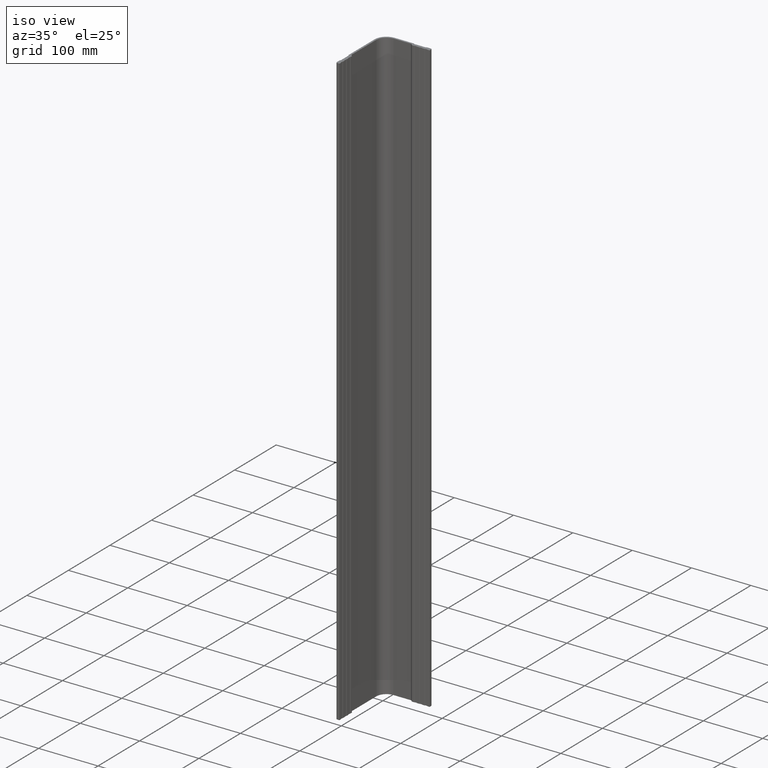
[diagram: clean part render]
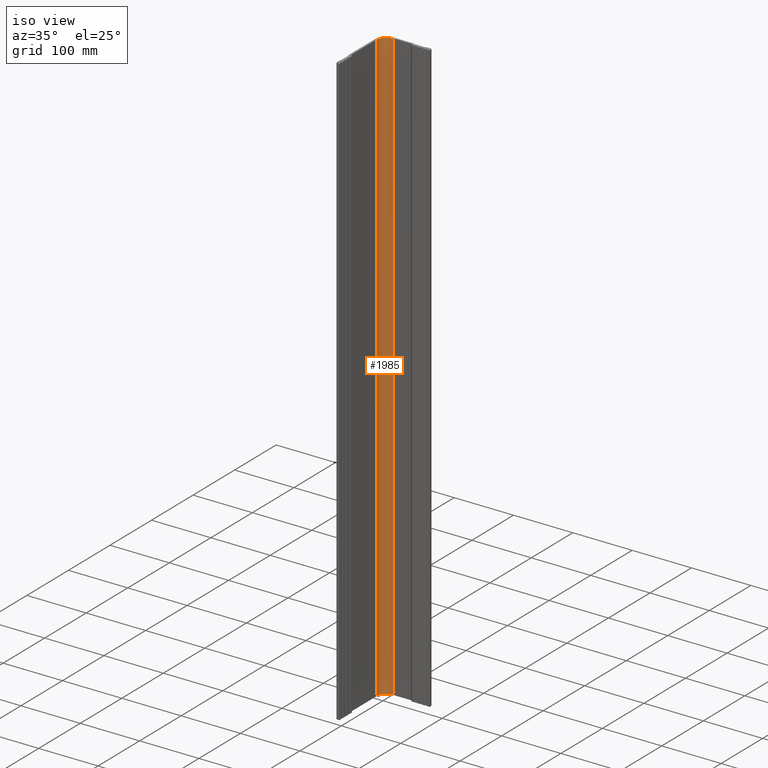
[diagram: same view with one face highlighted and labeled with its STEP entity id]
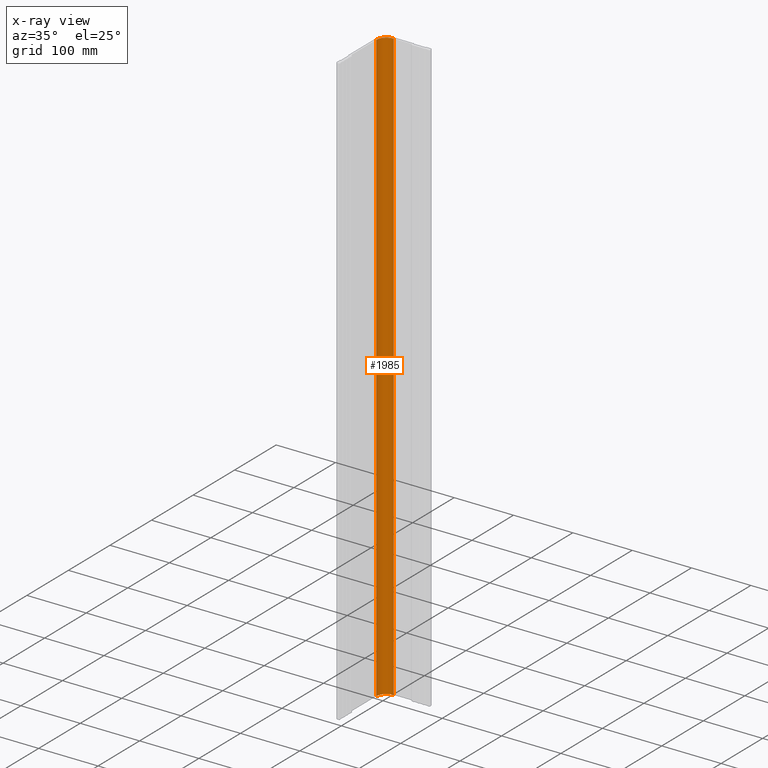
[diagram: x-ray of the same camera — body ghosted, the highlighted face saturated]
A machine part, iso view. The second image highlights one B-rep face of the part: STEP entity #1985.
The next image is the same camera in x-ray: the body ghosted, the highlighted face saturated — about 0% of this face is hidden behind the body in this view.
In plain terms, the highlighted cylindrical surface (edge-blend (fillet) strip) has radius 17 mm, axis along (-0, -0, -1).
Its self-contained STEP definition (entity closure, byte-faithful):
#83 = CARTESIAN_POINT ( 'NONE',  ( 20.00000000000001100, -2.999999999999999100, 500.0000000000000000 ) ) ;
#175 = DIRECTION ( 'NONE',  ( -0.0000000000000000000, -0.0000000000000000000, -1.000000000000000000 ) ) ;
#213 = AXIS2_PLACEMENT_3D ( 'NONE', #1578, #293, #1414 ) ;
#237 = DIRECTION ( 'NONE',  ( -0.0000000000000000000, -0.0000000000000000000, -1.000000000000000000 ) ) ;
#293 = DIRECTION ( 'NONE',  ( -0.0000000000000000000, -0.0000000000000000000, -1.000000000000000000 ) ) ;
#297 = ORIENTED_EDGE ( 'NONE', *, *, #607, .T. ) ;
#370 = VECTOR ( 'NONE', #237, 1000.000000000000000 ) ;
#424 = VECTOR ( 'NONE', #1950, 1000.000000000000000 ) ;
#607 = EDGE_CURVE ( 'NONE', #1289, #1188, #834, .T. ) ;
#723 = CARTESIAN_POINT ( 'NONE',  ( 3.000000000000009800, -20.00000000000000400, 500.0000000000000000 ) ) ;
#766 = VERTEX_POINT ( 'NONE', #1884 ) ;
#798 = FACE_OUTER_BOUND ( 'NONE', #1819, .T. ) ;
#823 = LINE ( 'NONE', #83, #370 ) ;
#834 = LINE ( 'NONE', #1781, #424 ) ;
#843 = CARTESIAN_POINT ( 'NONE',  ( 20.00000000000001100, -20.00000000000000000, -500.0000000000000000 ) ) ;
#883 = CARTESIAN_POINT ( 'NONE',  ( 20.00000000000001100, -2.999999999999999100, -500.0000000000000000 ) ) ;
#1005 = EDGE_CURVE ( 'NONE', #1289, #766, #2023, .T. ) ;
#1010 = DIRECTION ( 'NONE',  ( 1.000000000000000000, 0.0000000000000000000, 0.0000000000000000000 ) ) ;
#1113 = CARTESIAN_POINT ( 'NONE',  ( 20.00000000000001100, -20.00000000000000000, 500.0000000000000000 ) ) ;
#1188 = VERTEX_POINT ( 'NONE', #1876 ) ;
#1213 = CIRCLE ( 'NONE', #1666, 17.00000000000000000 ) ;
#1284 = DIRECTION ( 'NONE',  ( 1.000000000000000000, 0.0000000000000000000, 0.0000000000000000000 ) ) ;
#1289 = VERTEX_POINT ( 'NONE', #723 ) ;
#1324 = ORIENTED_EDGE ( 'NONE', *, *, #1719, .F. ) ;
#1353 = ORIENTED_EDGE ( 'NONE', *, *, #1005, .F. ) ;
#1414 = DIRECTION ( 'NONE',  ( -1.000000000000000000, 0.0000000000000000000, 0.0000000000000000000 ) ) ;
#1429 = AXIS2_PLACEMENT_3D ( 'NONE', #1113, #175, #1284 ) ;
#1492 = ORIENTED_EDGE ( 'NONE', *, *, #1701, .T. ) ;
#1578 = CARTESIAN_POINT ( 'NONE',  ( 20.00000000000001100, -20.00000000000000000, 500.0000000000000000 ) ) ;
#1666 = AXIS2_PLACEMENT_3D ( 'NONE', #843, #2044, #1010 ) ;
#1701 = EDGE_CURVE ( 'NONE', #1188, #1908, #1213, .T. ) ;
#1719 = EDGE_CURVE ( 'NONE', #766, #1908, #823, .T. ) ;
#1781 = CARTESIAN_POINT ( 'NONE',  ( 3.000000000000009800, -20.00000000000000400, 500.0000000000000000 ) ) ;
#1819 = EDGE_LOOP ( 'NONE', ( #1492, #1324, #1353, #297 ) ) ;
#1876 = CARTESIAN_POINT ( 'NONE',  ( 3.000000000000009800, -20.00000000000000400, -500.0000000000000000 ) ) ;
#1884 = CARTESIAN_POINT ( 'NONE',  ( 20.00000000000001100, -2.999999999999999100, 500.0000000000000000 ) ) ;
#1908 = VERTEX_POINT ( 'NONE', #883 ) ;
#1950 = DIRECTION ( 'NONE',  ( -0.0000000000000000000, -0.0000000000000000000, -1.000000000000000000 ) ) ;
#1985 = ADVANCED_FACE ( 'NONE', ( #798 ), #2057, .F. ) ;
#2023 = CIRCLE ( 'NONE', #1429, 17.00000000000000000 ) ;
#2044 = DIRECTION ( 'NONE',  ( -0.0000000000000000000, -0.0000000000000000000, -1.000000000000000000 ) ) ;
#2057 = CYLINDRICAL_SURFACE ( 'NONE', #213, 17.00000000000000000 ) ;